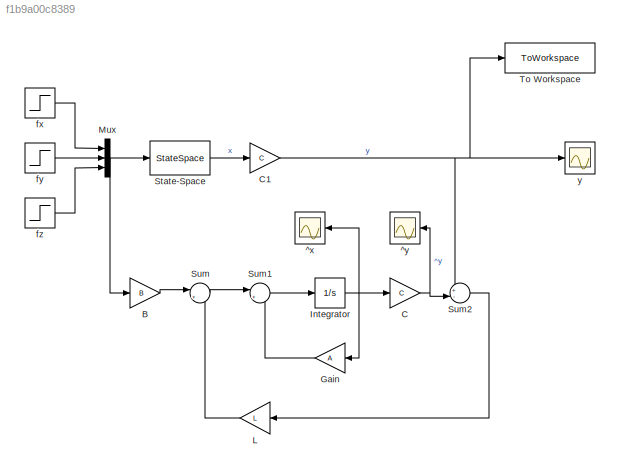
MODEL slx_f1b9a00c8389
KIND model
CONFIG AbsTol = auto
CONFIG EnableMultiTasking = off
CONFIG FixedStep = auto
CONFIG MaxStep = 0.0001
CONFIG MinStep = auto
CONFIG RelTol = 1e-3
CONFIG SampleTimeConstraint = Unconstrained
CONFIG SolverName = VariableStepAuto
CONFIG StartTime = 0.0
CONFIG StopTime = 1.4
BLOCK [Gain] B
  Gain = B
  Multiplication = Matrix(K*u) (u vector)
BLOCK [Gain] C
  Gain = C
  Multiplication = Matrix(K*u) (u vector)
BLOCK [Gain] C1
  Gain = C
  Multiplication = Matrix(K*u) (u vector)
BLOCK [Gain] Gain
  Gain = A
  Multiplication = Matrix(K*u) (u vector)
BLOCK [Integrator] Integrator
BLOCK [Gain] L
  Gain = L
  Multiplication = Matrix(K*u) (u vector)
BLOCK [Mux] Mux
  DisplayOption = bar
  Inputs = 3
BLOCK [StateSpace] State-Space
  A = A
  B = B
  C = C
  D = D
  InitialCondition = [0.1; 0; 0.1; 0; -0.1; 0]
BLOCK [Sum] Sum
  Inputs = |++
BLOCK [Sum] Sum1
  Inputs = |++
BLOCK [Sum] Sum2
  Inputs = +-|
  NameLocation = top
BLOCK [ToWorkspace] To Workspace
  FixptAsFi = on
  MaxDataPoints = inf
  SampleTime = -1
  SaveFormat = Structure With Time
  VariableName = simout
BLOCK [Scope] ^x
  Floating = off
  NumInputPorts = 1
  ScopeSpecificationString = Simulink.scopes.TimeScopeBlockCfg('CurrentConfiguration', extmgr.ConfigurationSet(extmgr.Configuration('Core','General UI',true),extmgr.Configuration('Core','Source UI',true),extmgr.Configuration('Sources','WiredSimulink',true,'DataLoggingVariableName','ScopeData1'),extmgr.Configuration('Visuals','Time Domain',true,'SerializedDisplays',{struct('MinYLimReal','-11.59111','MaxYLimReal','8.7943','YLab...<+1564ch>
BLOCK [Scope] ^y
  Floating = off
  NumInputPorts = 1
  ScopeSpecificationString = Simulink.scopes.TimeScopeBlockCfg('CurrentConfiguration', extmgr.ConfigurationSet(extmgr.Configuration('Core','General UI',true),extmgr.Configuration('Core','Source UI',true),extmgr.Configuration('Sources','WiredSimulink',true,'DataLoggingVariableName','ScopeData2'),extmgr.Configuration('Visuals','Time Domain',true,'SerializedDisplays',{struct('MinYLimReal','-0.18582','MaxYLimReal','0.17714','YLab...<+1568ch>
BLOCK [Step] fx
  Before = 1
  SampleTime = 0
BLOCK [Step] fy
  Before = 1
  SampleTime = 0
BLOCK [Step] fz
  Before = 1
  SampleTime = 0
BLOCK [Scope] y
  Floating = off
  NumInputPorts = 1
  ScopeSpecificationString = Simulink.scopes.TimeScopeBlockCfg('CurrentConfiguration', extmgr.ConfigurationSet(extmgr.Configuration('Core','General UI',true),extmgr.Configuration('Core','Source UI',true),extmgr.Configuration('Sources','WiredSimulink',true,'DataLoggingVariableName','ScopeData1'),extmgr.Configuration('Visuals','Time Domain',true,'SerializedDisplays',{struct('MinYLimReal','-0.125','MaxYLimReal','0.125','YLabelRe...<+1507ch>
LINE B:1 -> Sum:1
NET C1:1 -> Sum2:1, To Workspace:1, y:1
NET C:1 -> Sum2:2, ^y:1
LINE Gain:1 -> Sum1:2
NET Integrator:1 -> C:1, Gain:1, ^x:1
LINE L:1 -> Sum:2
NET Mux:1 -> B:1, State-Space:1
LINE State-Space:1 -> C1:1
LINE Sum1:1 -> Integrator:1
LINE Sum2:1 -> L:1
LINE Sum:1 -> Sum1:1
LINE fx:1 -> Mux:1
LINE fy:1 -> Mux:2
LINE fz:1 -> Mux:3
note: NET lines group one-source signal fan-out (src -> all destinations, sorted); 1:1 wires keep LINE
